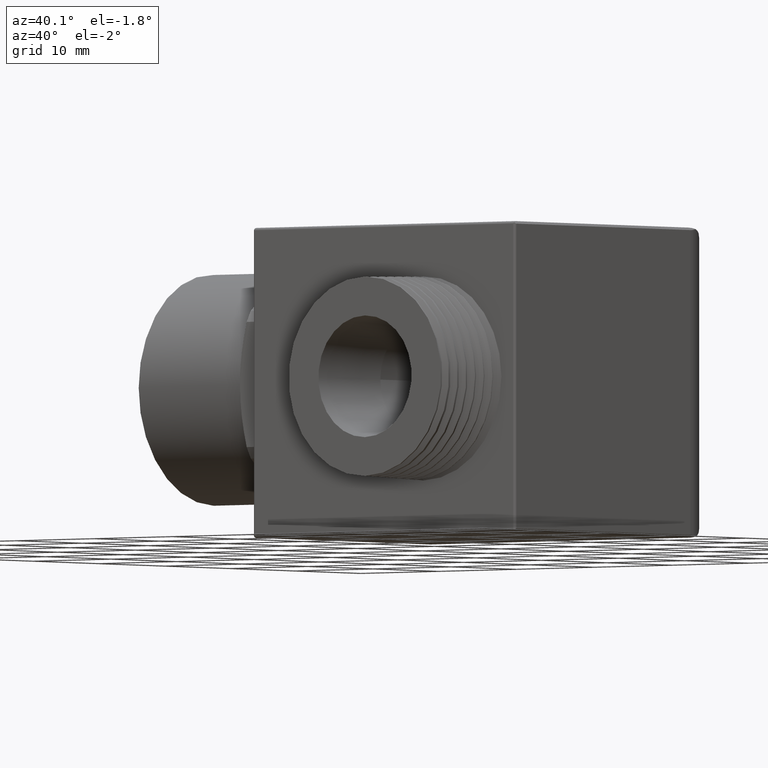
[diagram: clean part render]
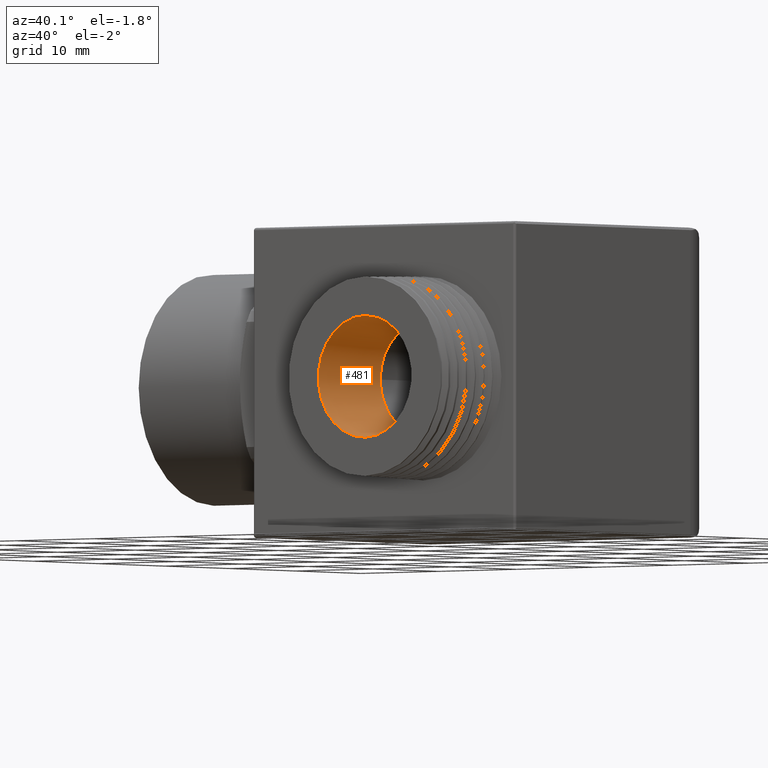
[diagram: same view with one face highlighted and labeled with its STEP entity id]
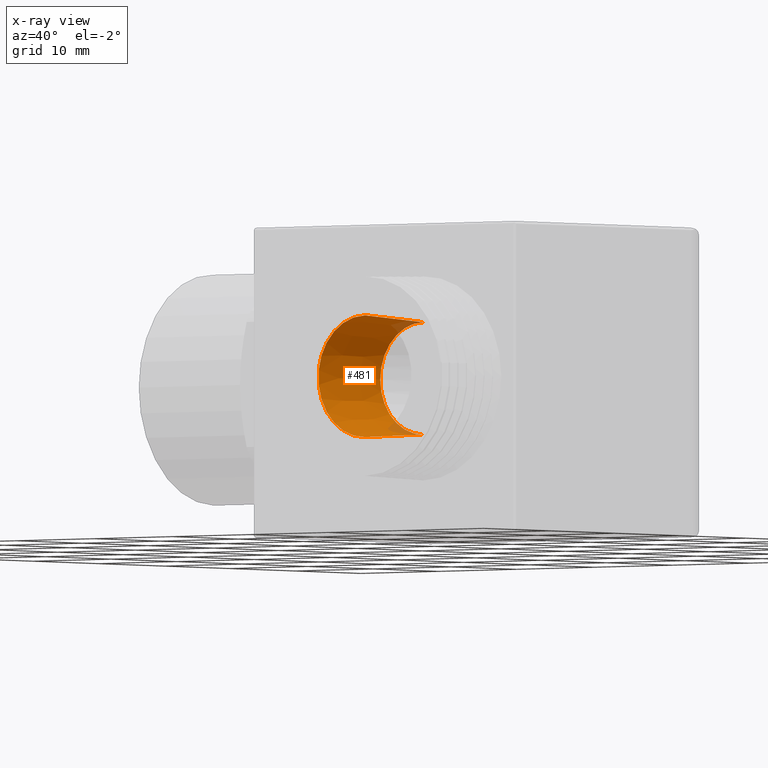
[diagram: x-ray of the same camera — body ghosted, the highlighted face saturated]
A machine part, auxiliary view. The second image highlights one B-rep face of the part: STEP entity #481.
The next image is the same camera in x-ray: the body ghosted, the highlighted face saturated — about 4% of this face is hidden behind the body in this view.
In plain terms, the highlighted conical surface has half-angle 3 deg.
Its self-contained STEP definition (entity closure, byte-faithful):
#402 = EDGE_CURVE ( 'NONE', #403, #434, #1822, .T. ) ;
#403 = VERTEX_POINT ( 'NONE', #1813 ) ;
#404 = ORIENTED_EDGE ( 'NONE', *, *, #405, .T. ) ;
#405 = EDGE_CURVE ( 'NONE', #403, #406, #1867, .T. ) ;
#406 = VERTEX_POINT ( 'NONE', #1863 ) ;
#407 = ORIENTED_EDGE ( 'NONE', *, *, #408, .F. ) ;
#408 = EDGE_CURVE ( 'NONE', #409, #406, #1862, .T. ) ;
#409 = VERTEX_POINT ( 'NONE', #1857 ) ;
#434 = VERTEX_POINT ( 'NONE', #1908 ) ;
#436 = EDGE_CURVE ( 'NONE', #434, #437, #1907, .T. ) ;
#437 = VERTEX_POINT ( 'NONE', #1902 ) ;
#451 = ORIENTED_EDGE ( 'NONE', *, *, #452, .F. ) ;
#452 = EDGE_CURVE ( 'NONE', #437, #409, #1985, .T. ) ;
#453 = ORIENTED_EDGE ( 'NONE', *, *, #436, .F. ) ;
#481 = ADVANCED_FACE ( 'NONE', ( #2030 ), #2029, .F. ) ;
#482 = EDGE_LOOP ( 'NONE', ( #483, #404, #407, #451, #453 ) ) ;
#483 = ORIENTED_EDGE ( 'NONE', *, *, #402, .F. ) ;
#1813 = CARTESIAN_POINT ( 'NONE',  ( 0.5112500000000002000, -0.5999999999999999800, 0.2172499999999999400 ) ) ;
#1814 = DIRECTION ( 'NONE',  ( 0.0000000000000000000, 0.0000000000000000000, -1.000000000000000000 ) ) ;
#1815 = DIRECTION ( 'NONE',  ( 0.0000000000000000000, -1.000000000000000000, 0.0000000000000000000 ) ) ;
#1816 = CARTESIAN_POINT ( 'NONE',  ( 0.5112500000000002000, -0.5999999999999999800, -2.785979454945908300E-017 ) ) ;
#1817 = AXIS2_PLACEMENT_3D ( 'NONE', #1816, #1815, #1814 ) ;
#1822 = CIRCLE ( 'NONE', #1817, 0.2172499999999999700 ) ;
#1857 = CARTESIAN_POINT ( 'NONE',  ( 0.5112500000000002000, -0.9499999999999999600, -0.2355927227490644800 ) ) ;
#1858 = DIRECTION ( 'NONE',  ( 0.0000000000000000000, 0.0000000000000000000, 1.000000000000000000 ) ) ;
#1859 = DIRECTION ( 'NONE',  ( 0.0000000000000000000, 1.000000000000000000, 0.0000000000000000000 ) ) ;
#1860 = CARTESIAN_POINT ( 'NONE',  ( 0.5112500000000002000, -0.9499999999999999600, -2.785979454945908300E-017 ) ) ;
#1861 = AXIS2_PLACEMENT_3D ( 'NONE', #1860, #1859, #1858 ) ;
#1862 = CIRCLE ( 'NONE', #1861, 0.2355927227490644500 ) ;
#1863 = CARTESIAN_POINT ( 'NONE',  ( 0.5112500000000002000, -0.9499999999999999600, 0.2355927227490644000 ) ) ;
#1864 = DIRECTION ( 'NONE',  ( 6.409306129323724000E-018, -0.9986295347545738300, 0.05233595624294394600 ) ) ;
#1865 = VECTOR ( 'NONE', #1864, 39.37007874015748900 ) ;
#1866 = CARTESIAN_POINT ( 'NONE',  ( 0.5112500000000002000, -0.9499999999999999600, 0.2355927227490644000 ) ) ;
#1867 = LINE ( 'NONE', #1866, #1865 ) ;
#1902 = CARTESIAN_POINT ( 'NONE',  ( 0.5112500000000002000, -0.5999999999999999800, -0.2172500000000000300 ) ) ;
#1903 = DIRECTION ( 'NONE',  ( 0.0000000000000000000, 0.0000000000000000000, -1.000000000000000000 ) ) ;
#1904 = DIRECTION ( 'NONE',  ( 0.0000000000000000000, -1.000000000000000000, 0.0000000000000000000 ) ) ;
#1905 = CARTESIAN_POINT ( 'NONE',  ( 0.5112500000000002000, -0.5999999999999999800, -2.785979454945908300E-017 ) ) ;
#1906 = AXIS2_PLACEMENT_3D ( 'NONE', #1905, #1904, #1903 ) ;
#1907 = CIRCLE ( 'NONE', #1906, 0.2172499999999999700 ) ;
#1908 = CARTESIAN_POINT ( 'NONE',  ( 0.2940000000000002100, -0.5999999999999999800, 2.660545171147626300E-017 ) ) ;
#1982 = DIRECTION ( 'NONE',  ( 0.0000000000000000000, -0.9986295347545738300, -0.05233595624294394600 ) ) ;
#1983 = VECTOR ( 'NONE', #1982, 39.37007874015748900 ) ;
#1984 = CARTESIAN_POINT ( 'NONE',  ( 0.5112500000000002000, -0.9499999999999999600, -0.2355927227490644800 ) ) ;
#1985 = LINE ( 'NONE', #1984, #1983 ) ;
#2019 = DIRECTION ( 'NONE',  ( 0.0000000000000000000, 0.0000000000000000000, -1.000000000000000000 ) ) ;
#2020 = DIRECTION ( 'NONE',  ( 0.0000000000000000000, -1.000000000000000000, 0.0000000000000000000 ) ) ;
#2021 = CARTESIAN_POINT ( 'NONE',  ( 0.5112500000000002000, -0.9499999999999999600, -2.785979454945908300E-017 ) ) ;
#2023 = AXIS2_PLACEMENT_3D ( 'NONE', #2021, #2020, #2019 ) ;
#2029 = CONICAL_SURFACE ( 'NONE', #2023, 0.2355927227490644500, 0.05235987755982999400 ) ;
#2030 = FACE_OUTER_BOUND ( 'NONE', #482, .T. ) ;